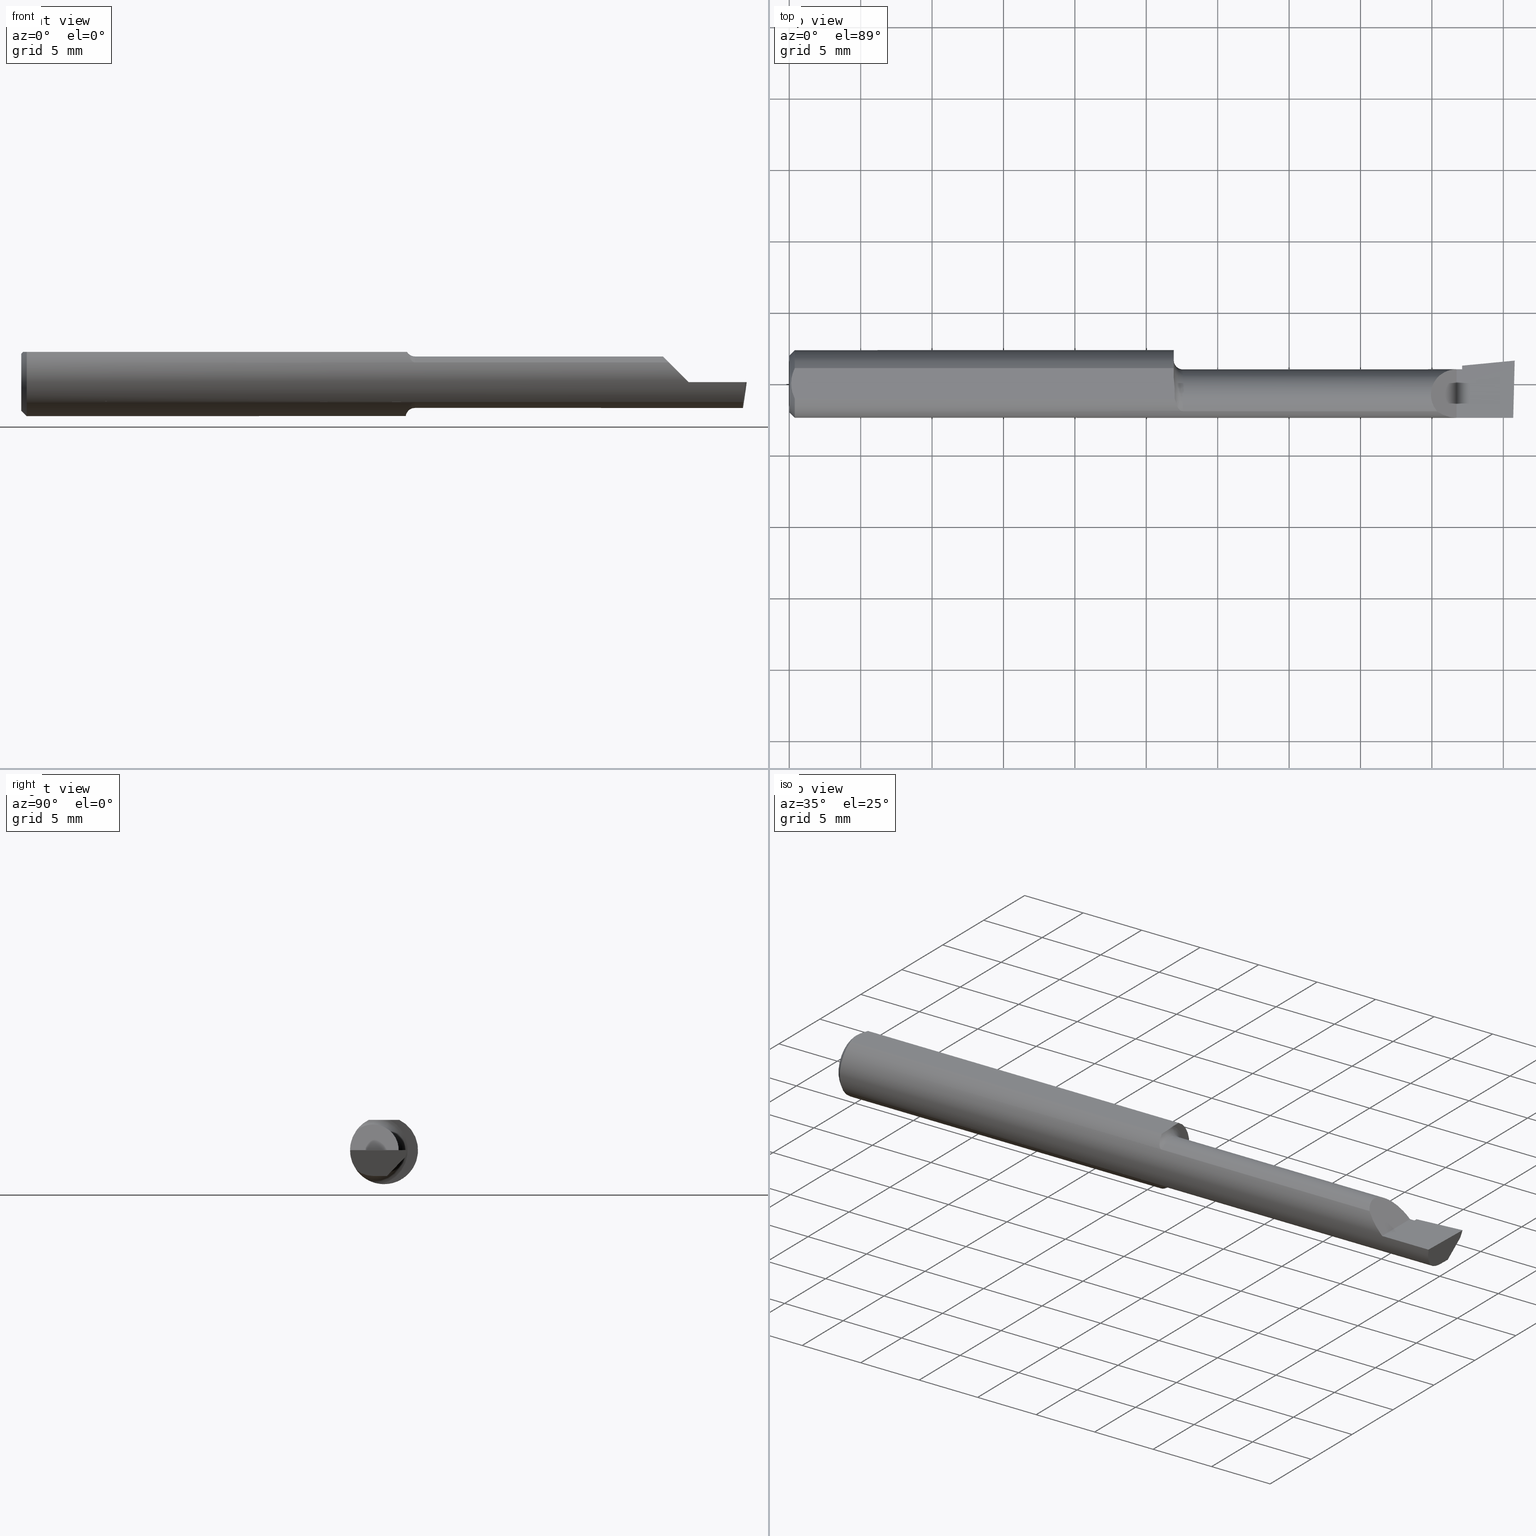
[diagram: canonical four-view strip — front | top / right | iso, engineering-drawing reading convention]
A machine part, canonical four-view strip (front | top / right | iso — engineering-drawing reading convention). The complete STEP part file that produces these views, byte-faithful:
ISO-10303-21;
HEADER;
FILE_DESCRIPTION (( 'STEP AP203' ),
    '1' );
FILE_NAME ('217345-B160900.STEP',
    '2024-04-23T17:39:53',
    ( '' ),
    ( '' ),
    'SwSTEP 2.0',
    'SolidWorks 2022',
    '' );
FILE_SCHEMA (( 'CONFIG_CONTROL_DESIGN' ));
ENDSEC;

DATA;
#1 = EDGE_CURVE ( 'NONE', #427, #292, #69, .T. ) ;
#2 = EDGE_LOOP ( 'NONE', ( #213, #172, #134, #616, #51, #469 ) ) ;
#3 = CALENDAR_DATE ( 2024, 23, 4 ) ;
#4 =( BOUNDED_CURVE ( )  B_SPLINE_CURVE ( 3, ( #475, #370, #35, #412 ),
 .UNSPECIFIED., .F., .T. ) 
 B_SPLINE_CURVE_WITH_KNOTS ( ( 4, 4 ),
 ( 4.712388980384689674, 5.334140324029830182 ),
 .UNSPECIFIED. ) 
 CURVE ( )  GEOMETRIC_REPRESENTATION_ITEM ( )  RATIONAL_B_SPLINE_CURVE ( ( 1.000000000000000000, 0.9680440490283178656, 0.9680440490283178656, 1.000000000000000000 ) ) 
 REPRESENTATION_ITEM ( '' )  );
#5 = ORIENTED_EDGE ( 'NONE', *, *, #332, .T. ) ;
#6 = CIRCLE ( 'NONE', #525, 0.07100000000000010469 ) ;
#7 = CARTESIAN_POINT ( 'NONE',  ( 1.840000000000000080, 0.04039999999999985963, 1.959434878635762025E-17 ) ) ;
#8 = CARTESIAN_POINT ( 'NONE',  ( 0.000000000000000000, 1.054420894065869177E-17, 0.07859999999999965625 ) ) ;
#9 = DIRECTION ( 'NONE',  ( -1.000000000000000000, -0.000000000000000000, -0.000000000000000000 ) ) ;
#10 = VECTOR ( 'NONE', #314, 39.37007874015748143 ) ;
#11 = CARTESIAN_POINT ( 'NONE',  ( 1.072372878085587899, -0.06813570069660571105, -0.06426486695182651032 ) ) ;
#12 = DIRECTION ( 'NONE',  ( 2.429359850419096032E-34, 4.268512490100411895E-17, 1.000000000000000000 ) ) ;
#13 = EDGE_CURVE ( 'NONE', #318, #75, #626, .T. ) ;
#14 = DIRECTION ( 'NONE',  ( -0.02617694830786939167, -0.9996573249755573709, 1.459184416195897376E-17 ) ) ;
#15 = DIRECTION ( 'NONE',  ( -1.000000000000000000, -4.268512490100411279E-18, -0.000000000000000000 ) ) ;
#16 = CC_DESIGN_DATE_AND_TIME_ASSIGNMENT ( #135, #470, ( #245 ) ) ;
#17 = AXIS2_PLACEMENT_3D ( 'NONE', #605, #21, #120 ) ;
#18 = LINE ( 'NONE', #542, #497 ) ;
#19 = VERTEX_POINT ( 'NONE', #97 ) ;
#20 = EDGE_CURVE ( 'NONE', #186, #231, #491, .T. ) ;
#21 = DIRECTION ( 'NONE',  ( -1.000000000000000000, -0.000000000000000000, -0.000000000000000000 ) ) ;
#22 = AXIS2_PLACEMENT_3D ( 'NONE', #359, #400, #302 ) ;
#23 = FACE_OUTER_BOUND ( 'NONE', #281, .T. ) ;
#24 = CARTESIAN_POINT ( 'NONE',  ( 1.072718485147075240, -0.06880529263944752671, 0.06356579742164533697 ) ) ;
#25 = CARTESIAN_POINT ( 'NONE',  ( 1.084999999999999964, -0.03060000000000022771, 0.000000000000000000 ) ) ;
#26 = VERTEX_POINT ( 'NONE', #338 ) ;
#27 = FACE_OUTER_BOUND ( 'NONE', #391, .T. ) ;
#28 = VECTOR ( 'NONE', #65, 39.37007874015748143 ) ;
#29 = DIRECTION ( 'NONE',  ( -1.000000000000000000, -4.268512490100411279E-18, -0.000000000000000000 ) ) ;
#30 = ORIENTED_EDGE ( 'NONE', *, *, #277, .F. ) ;
#31 = PERSON_AND_ORGANIZATION_ROLE ( 'classification_officer' ) ;
#32 = LINE ( 'NONE', #368, #374 ) ;
#33 = ORIENTED_EDGE ( 'NONE', *, *, #230, .T. ) ;
#34 = CARTESIAN_POINT ( 'NONE',  ( 0.000000000000000000, 0.000000000000000000, 0.000000000000000000 ) ) ;
#35 = CARTESIAN_POINT ( 'NONE',  ( 1.801509571749044802, -0.08756847698998002083, 0.03849042825095470161 ) ) ;
#36 = ORIENTED_EDGE ( 'NONE', *, *, #20, .T. ) ;
#37 = CARTESIAN_POINT ( 'NONE',  ( 1.995862624392068074, -0.09360000000000009979, -6.605666309584466665E-17 ) ) ;
#38 = ORIENTED_EDGE ( 'NONE', *, *, #100, .T. ) ;
#39 = DATE_AND_TIME ( #479, #530 ) ;
#40 = ADVANCED_FACE ( 'NONE', ( #196 ), #290, .F. ) ;
#41 = PLANE ( 'NONE',  #289 ) ;
#42 = EDGE_LOOP ( 'NONE', ( #5, #435, #538, #376, #33, #38 ) ) ;
#43 = ORGANIZATION ( 'UNSPECIFIED', 'UNSPECIFIED', '' ) ;
#44 = CARTESIAN_POINT ( 'NONE',  ( 2.000000000000004441, 0.06440000000001341873, 4.273634705088531894E-14 ) ) ;
#45 = CARTESIAN_POINT ( 'NONE',  ( -3.030643867965639230E-19, 0.04039999999999993596, 1.030335658007946046E-15 ) ) ;
#46 = CARTESIAN_POINT ( 'NONE',  ( 0.01499999999999999771, 0.000000000000000000, 0.000000000000000000 ) ) ;
#47 = DIRECTION ( 'NONE',  ( -1.000000000000000000, -0.000000000000000000, -0.000000000000000000 ) ) ;
#48 = CIRCLE ( 'NONE', #17, 0.07859999999999965625 ) ;
#49 = EDGE_CURVE ( 'NONE', #547, #587, #342, .T. ) ;
#50 = ORIENTED_EDGE ( 'NONE', *, *, #490, .T. ) ;
#51 = ORIENTED_EDGE ( 'NONE', *, *, #502, .F. ) ;
#52 = CARTESIAN_POINT ( 'NONE',  ( 1.854999999999999982, 0.05043808801135670622, 0.000000000000000000 ) ) ;
#53 = CARTESIAN_POINT ( 'NONE',  ( 1.991772787678609324, -0.2497845628634190740, -6.377686106282058433E-17 ) ) ;
#54 = VECTOR ( 'NONE', #136, 39.37007874015748143 ) ;
#55 = CYLINDRICAL_SURFACE ( 'NONE', #517, 0.09360000000000001652 ) ;
#56 = DIRECTION ( 'NONE',  ( 0.09165774897393337561, -0.9519021185660612172, 0.2923717047227308297 ) ) ;
#57 = FACE_OUTER_BOUND ( 'NONE', #540, .T. ) ;
#58 = VECTOR ( 'NONE', #458, 39.37007874015748143 ) ;
#59 = CARTESIAN_POINT ( 'NONE',  ( 1.434010493224923133, 0.009901409102841211146, -6.829619984160658046E-17 ) ) ;
#60 = ORIENTED_EDGE ( 'NONE', *, *, #248, .T. ) ;
#61 = CARTESIAN_POINT ( 'NONE',  ( 1.084999999999999964, -0.07608366013071805878, -0.05451822320209422784 ) ) ;
#62 = CARTESIAN_POINT ( 'NONE',  ( 1.063362255574652693, -0.03233437538769846215, 0.08360000000000003539 ) ) ;
#63 = PLANE ( 'NONE',  #22 ) ;
#64 = EDGE_CURVE ( 'NONE', #19, #292, #18, .T. ) ;
#65 = DIRECTION ( 'NONE',  ( -1.000000000000000000, 5.691349986800549142E-18, -0.000000000000000000 ) ) ;
#66 = DIRECTION ( 'NONE',  ( 0.000000000000000000, 0.000000000000000000, -1.000000000000000000 ) ) ;
#67 = CARTESIAN_POINT ( 'NONE',  ( 0.01499999999999999771, 0.000000000000000000, -0.09360000000000001652 ) ) ;
#68 = CARTESIAN_POINT ( 'NONE',  ( 0.000000000000000000, 0.000000000000000000, 0.000000000000000000 ) ) ;
#69 = CIRCLE ( 'NONE', #113, 0.09360000000000001652 ) ;
#70 = CARTESIAN_POINT ( 'NONE',  ( 1.059999999999995612, -0.01523829271462615043, -0.09264723852076071908 ) ) ;
#71 = ORIENTED_EDGE ( 'NONE', *, *, #350, .T. ) ;
#72 = ADVANCED_BREP_SHAPE_REPRESENTATION ( '217345-B160900', ( #181, #389 ), #225 ) ;
#73 = DIRECTION ( 'NONE',  ( 0.000000000000000000, 1.000000000000000000, -4.268512490100411895E-17 ) ) ;
#74 = DIRECTION ( 'NONE',  ( 0.06894566448119621160, -0.7160281025913035613, 0.6946583704589933683 ) ) ;
#75 = VERTEX_POINT ( 'NONE', #352 ) ;
#76 = ADVANCED_FACE ( 'NONE', ( #442 ), #434, .T. ) ;
#77 = CARTESIAN_POINT ( 'NONE',  ( 1.989625015145392917, -0.07608366013071823919, -0.05451822320209416539 ) ) ;
#78 = ORIENTED_EDGE ( 'NONE', *, *, #355, .F. ) ;
#79 = PERSON_AND_ORGANIZATION ( #190, #43 ) ;
#80 = CC_DESIGN_PERSON_AND_ORGANIZATION_ASSIGNMENT ( #91, #88, ( #447 ) ) ;
#81 = PLANE ( 'NONE',  #112 ) ;
#82 = EDGE_CURVE ( 'NONE', #75, #623, #153, .T. ) ;
#83 = ORIENTED_EDGE ( 'NONE', *, *, #64, .F. ) ;
#84 = COORDINATED_UNIVERSAL_TIME_OFFSET ( 8, 0, .BEHIND. ) ;
#85 = VECTOR ( 'NONE', #551, 39.37007874015748143 ) ;
#86 = EDGE_CURVE ( 'NONE', #436, #151, #486, .T. ) ;
#87 = ORIENTED_EDGE ( 'NONE', *, *, #513, .F. ) ;
#88 = PERSON_AND_ORGANIZATION_ROLE ( 'creator' ) ;
#89 = CARTESIAN_POINT ( 'NONE',  ( 1.854999999999999982, 0.003039038829300866676, -0.06252531540616805550 ) ) ;
#90 = ORIENTED_EDGE ( 'NONE', *, *, #328, .F. ) ;
#91 = PERSON_AND_ORGANIZATION ( #190, #43 ) ;
#92 = ORIENTED_EDGE ( 'NONE', *, *, #158, .T. ) ;
#93 = ADVANCED_FACE ( 'NONE', ( #23 ), #219, .F. ) ;
#94 = CARTESIAN_POINT ( 'NONE',  ( 2.000000000000000000, -0.2500000000000000555, -6.829619984160658046E-17 ) ) ;
#95 = AXIS2_PLACEMENT_3D ( 'NONE', #59, #56, #506 ) ;
#96 = DATE_AND_TIME ( #3, #457 ) ;
#97 = CARTESIAN_POINT ( 'NONE',  ( 0.000000000000000000, 0.000000000000000000, -0.07859999999999965625 ) ) ;
#98 = DIRECTION ( 'NONE',  ( 1.000000000000000000, 0.000000000000000000, 0.000000000000000000 ) ) ;
#99 = DIRECTION ( 'NONE',  ( -1.000000000000000000, -4.268512490100411279E-18, -0.000000000000000000 ) ) ;
#100 = EDGE_CURVE ( 'NONE', #614, #186, #102, .T. ) ;
#101 = CARTESIAN_POINT ( 'NONE',  ( 1.785481776797905207, -0.07608366013071837797, 0.05451822320209400580 ) ) ;
#102 = LINE ( 'NONE', #53, #595 ) ;
#103 = B_SPLINE_CURVE_WITH_KNOTS ( 'NONE', 3,
 ( #541, #251, #484, #499, #198, #625 ),
 .UNSPECIFIED., .F., .F.,
 ( 4, 2, 4 ),
 ( 0.006881281100865561072, 0.007427683811376461706, 0.007974086521887361473 ),
 .UNSPECIFIED. ) ;
#104 = CIRCLE ( 'NONE', #578, 0.09600000000000015465 ) ;
#105 = CARTESIAN_POINT ( 'NONE',  ( 1.770398118553868860, 0.04039999999999994984, 0.06960188144613040084 ) ) ;
#106 = DIRECTION ( 'NONE',  ( 1.000000000000000000, 4.268512490100411279E-18, 0.000000000000000000 ) ) ;
#107 = LINE ( 'NONE', #411, #620 ) ;
#108 = DIRECTION ( 'NONE',  ( -1.000000000000000000, -4.268512490100411279E-18, -0.000000000000000000 ) ) ;
#109 = EDGE_CURVE ( 'NONE', #180, #325, #404, .T. ) ;
#110 = DIRECTION ( 'NONE',  ( 0.000000000000000000, 0.000000000000000000, 1.000000000000000000 ) ) ;
#111 = CARTESIAN_POINT ( 'NONE',  ( 1.989625015145392917, -0.07608366013071823919, -0.05451822320209416539 ) ) ;
#112 = AXIS2_PLACEMENT_3D ( 'NONE', #216, #74, #183 ) ;
#113 = AXIS2_PLACEMENT_3D ( 'NONE', #46, #47, #240 ) ;
#114 = CARTESIAN_POINT ( 'NONE',  ( 1.988351831874612508, -0.04739579569646898416, -0.07100000000000017408 ) ) ;
#115 = ORIENTED_EDGE ( 'NONE', *, *, #552, .F. ) ;
#116 = CARTESIAN_POINT ( 'NONE',  ( 1.064336437763706122, -0.04985092026457548647, 0.07969472503477169345 ) ) ;
#117 = LOCAL_TIME ( 10, 39, 53.00000000000000000, #326 ) ;
#118 = DIRECTION ( 'NONE',  ( 1.000000000000000000, 4.268512490100411279E-18, 0.000000000000000000 ) ) ;
#119 = ORIENTED_EDGE ( 'NONE', *, *, #212, .F. ) ;
#120 = DIRECTION ( 'NONE',  ( 0.000000000000000000, 0.000000000000000000, 1.000000000000000000 ) ) ;
#121 = DIRECTION ( 'NONE',  ( -1.000000000000000000, -4.268512490100411279E-18, -0.000000000000000000 ) ) ;
#122 = ORIENTED_EDGE ( 'NONE', *, *, #146, .T. ) ;
#123 = EDGE_CURVE ( 'NONE', #292, #431, #166, .T. ) ;
#124 = CALENDAR_DATE ( 2024, 23, 4 ) ;
#125 = AXIS2_PLACEMENT_3D ( 'NONE', #94, #392, #585 ) ;
#126 = DIRECTION ( 'NONE',  ( -0.000000000000000000, 1.000000000000000000, -0.000000000000000000 ) ) ;
#127 = ORIENTED_EDGE ( 'NONE', *, *, #220, .T. ) ;
#128 = EDGE_CURVE ( 'NONE', #436, #557, #104, .T. ) ;
#129 = FACE_OUTER_BOUND ( 'NONE', #420, .T. ) ;
#130 = SECURITY_CLASSIFICATION ( '', '', #522 ) ;
#131 = ORIENTED_EDGE ( 'NONE', *, *, #602, .F. ) ;
#132 = LENGTH_MEASURE_WITH_UNIT ( LENGTH_MEASURE( 0.02539999999999999897 ), #474 );
#133 = CARTESIAN_POINT ( 'NONE',  ( 1.854999999999999982, -0.2500000000000000555, 1.135460985248596835E-17 ) ) ;
#134 = ORIENTED_EDGE ( 'NONE', *, *, #158, .F. ) ;
#135 = DATE_AND_TIME ( #617, #539 ) ;
#136 = DIRECTION ( 'NONE',  ( 0.1053106618241779063, 0.6976485211320171409, 0.7086580314005218595 ) ) ;
#137 = VECTOR ( 'NONE', #194, 39.37007874015748143 ) ;
#138 = ORIENTED_EDGE ( 'NONE', *, *, #13, .T. ) ;
#139 = LINE ( 'NONE', #297, #330 ) ;
#140 = ORIENTED_EDGE ( 'NONE', *, *, #586, .F. ) ;
#141 = APPROVAL_PERSON_ORGANIZATION ( #569, #262, #624 ) ;
#142 = ORIENTED_EDGE ( 'NONE', *, *, #502, .T. ) ;
#143 = DATE_TIME_ROLE ( 'classification_date' ) ;
#144 = DESIGN_CONTEXT ( 'detailed design', #243, 'design' ) ;
#145 = ORIENTED_EDGE ( 'NONE', *, *, #291, .T. ) ;
#146 = EDGE_CURVE ( 'NONE', #460, #438, #163, .T. ) ;
#147 = VERTEX_POINT ( 'NONE', #360 ) ;
#148 = CC_DESIGN_APPROVAL ( #534, ( #447 ) ) ;
#149 = DIRECTION ( 'NONE',  ( -1.000000000000000000, -0.000000000000000000, -0.000000000000000000 ) ) ;
#150 = CARTESIAN_POINT ( 'NONE',  ( 1.077249994923977994, -0.07326991650738470807, -0.05826485454810942377 ) ) ;
#151 = VERTEX_POINT ( 'NONE', #295 ) ;
#152 = DIRECTION ( 'NONE',  ( 4.268512490100411279E-18, -1.000000000000000000, 0.000000000000000000 ) ) ;
#153 = LINE ( 'NONE', #546, #606 ) ;
#154 = ORIENTED_EDGE ( 'NONE', *, *, #372, .T. ) ;
#155 = VECTOR ( 'NONE', #383, 39.37007874015748143 ) ;
#156 = CARTESIAN_POINT ( 'NONE',  ( 1.084999999999999964, -0.07608366013071805878, 0.05451822320209422784 ) ) ;
#157 = CARTESIAN_POINT ( 'NONE',  ( 0.01499999999999999771, 1.146269404001922775E-17, 0.09360000000000001652 ) ) ;
#158 = EDGE_CURVE ( 'NONE', #427, #413, #498, .T. ) ;
#159 = DIRECTION ( 'NONE',  ( 4.268512490100411279E-18, -1.000000000000000000, 0.000000000000000000 ) ) ;
#160 = CARTESIAN_POINT ( 'NONE',  ( 1.854999999999999982, 0.02466814268713793043, -0.04023083677511909290 ) ) ;
#161 = ORIENTED_EDGE ( 'NONE', *, *, #597, .T. ) ;
#162 = CARTESIAN_POINT ( 'NONE',  ( 1.013387277386880392, -0.03060000000000022771, 4.736658843696217583E-16 ) ) ;
#163 = LINE ( 'NONE', #160, #85 ) ;
#164 = ORIENTED_EDGE ( 'NONE', *, *, #128, .F. ) ;
#165 = FACE_OUTER_BOUND ( 'NONE', #2, .T. ) ;
#166 = CIRCLE ( 'NONE', #554, 0.09360000000000001652 ) ;
#167 = CARTESIAN_POINT ( 'NONE',  ( 1.989254605881537685, 0.03820997996013973663, -0.08190066459133928112 ) ) ;
#168 = ORIENTED_EDGE ( 'NONE', *, *, #215, .T. ) ;
#169 = CARTESIAN_POINT ( 'NONE',  ( 0.009539353699420834165, -0.02875682547511369813, 0.08360000000000003539 ) ) ;
#170 = AXIS2_PLACEMENT_3D ( 'NONE', #550, #306, #319 ) ;
#171 = CARTESIAN_POINT ( 'NONE',  ( 1.060000000000000053, -0.007864705882352667973, -0.09326900021649256467 ) ) ;
#172 = ORIENTED_EDGE ( 'NONE', *, *, #248, .F. ) ;
#173 = APPLICATION_PROTOCOL_DEFINITION ( 'international standard', 'config_control_design', 1994, #206 ) ;
#174 = PRODUCT_RELATED_PRODUCT_CATEGORY ( 'detail', '', ( #365 ) ) ;
#175 = CARTESIAN_POINT ( 'NONE',  ( 1.854999999999999982, 0.05043808801135910014, 1.028711510114199084E-15 ) ) ;
#176 = ORIENTED_EDGE ( 'NONE', *, *, #556, .T. ) ;
#177 = MECHANICAL_CONTEXT ( 'NONE', #206, 'mechanical' ) ;
#178 = VECTOR ( 'NONE', #364, 39.37007874015748854 ) ;
#179 = CARTESIAN_POINT ( 'NONE',  ( 1.061750924354899261, -0.03635445752162102390, -0.08656092162675020629 ) ) ;
#180 = VERTEX_POINT ( 'NONE', #8 ) ;
#181 = MANIFOLD_SOLID_BREP ( 'Extrude7', #545 ) ;
#182 = DIRECTION ( 'NONE',  ( 0.000000000000000000, 0.000000000000000000, 1.000000000000000000 ) ) ;
#183 = DIRECTION ( 'NONE',  ( 0.000000000000000000, -0.6963153109074924352, -0.7177360153954949196 ) ) ;
#184 = EDGE_LOOP ( 'NONE', ( #50, #464 ) ) ;
#185 = CARTESIAN_POINT ( 'NONE',  ( 1.060000000000000053, 0.04209513035969836975, 0.08360000000000000764 ) ) ;
#186 = VERTEX_POINT ( 'NONE', #308 ) ;
#187 = DIRECTION ( 'NONE',  ( 0.000000000000000000, 0.000000000000000000, -1.000000000000000000 ) ) ;
#188 = VECTOR ( 'NONE', #271, 39.37007874015748143 ) ;
#189 = CARTESIAN_POINT ( 'NONE',  ( 1.854999999999999982, 0.04694360585384953211, -0.01137731495658560188 ) ) ;
#190 = PERSON ( 'UNSPECIFIED', 'UNSPECIFIED', 'UNSPECIFIED', ('UNSPECIFIED'), ('UNSPECIFIED'), ('UNSPECIFIED') ) ;
#191 = APPROVAL_ROLE ( '' ) ;
#192 = VERTEX_POINT ( 'NONE', #596 ) ;
#193 = CC_DESIGN_SECURITY_CLASSIFICATION ( #130, ( #447 ) ) ;
#194 = DIRECTION ( 'NONE',  ( -1.000000000000000000, -0.000000000000000000, -0.000000000000000000 ) ) ;
#195 = ADVANCED_FACE ( 'NONE', ( #453 ), #500, .F. ) ;
#196 = FACE_OUTER_BOUND ( 'NONE', #366, .T. ) ;
#197 = EDGE_CURVE ( 'NONE', #600, #361, #495, .T. ) ;
#198 = CARTESIAN_POINT ( 'NONE',  ( 0.01203648650249650870, 0.03550565407121124978, 0.08360000000000000764 ) ) ;
#199 = DIRECTION ( 'NONE',  ( 4.268512490100411279E-18, -1.000000000000000000, 0.000000000000000000 ) ) ;
#200 = EDGE_LOOP ( 'NONE', ( #424, #316, #288, #333, #276, #528, #154, #512, #477, #407 ) ) ;
#201 = LOCAL_TIME ( 10, 39, 53.00000000000000000, #334 ) ;
#202 = FACE_OUTER_BOUND ( 'NONE', #357, .T. ) ;
#203 = CARTESIAN_POINT ( 'NONE',  ( 1.060000000000000053, -0.03060000000000022771, 0.000000000000000000 ) ) ;
#204 = CARTESIAN_POINT ( 'NONE',  ( 0.005000000000000237761, 1.025183009042025117E-17, 0.08360000000000000764 ) ) ;
#205 = DIRECTION ( 'NONE',  ( -1.000000000000000000, -0.000000000000000000, -0.000000000000000000 ) ) ;
#206 = APPLICATION_CONTEXT ( 'configuration controlled 3d designs of mechanical parts and assemblies' ) ;
#207 = AXIS2_PLACEMENT_3D ( 'NONE', #531, #591, #152 ) ;
#208 = DIRECTION ( 'NONE',  ( -1.000000000000000000, -0.000000000000000000, -0.000000000000000000 ) ) ;
#209 = DIRECTION ( 'NONE',  ( 0.7071067811865391350, 0.000000000000000000, -0.7071067811865558994 ) ) ;
#210 = CARTESIAN_POINT ( 'NONE',  ( 0.005000000000000228220, -0.007328888879231051229, 0.08359999999999999376 ) ) ;
#211 = CARTESIAN_POINT ( 'NONE',  ( 1.081360941731894343, -0.07557034852506695766, -0.05524018594043172276 ) ) ;
#212 = EDGE_CURVE ( 'NONE', #574, #557, #222, .T. ) ;
#213 = ORIENTED_EDGE ( 'NONE', *, *, #86, .F. ) ;
#214 = DIRECTION ( 'NONE',  ( 0.000000000000000000, -1.000000000000000000, 0.000000000000000000 ) ) ;
#215 = EDGE_CURVE ( 'NONE', #623, #460, #570, .T. ) ;
#216 = CARTESIAN_POINT ( 'NONE',  ( 1.434596552969581662, 0.003814945941878222693, -0.02000000000000000042 ) ) ;
#217 = EDGE_LOOP ( 'NONE', ( #227, #341, #237, #279, #142 ) ) ;
#218 = CARTESIAN_POINT ( 'NONE',  ( 1.070942860874689151, -0.06599234460544597947, 0.06650584501266756932 ) ) ;
#219 = TOROIDAL_SURFACE ( 'NONE', #362, 0.09600000000000015465, 0.02499999999999994241 ) ;
#220 = EDGE_CURVE ( 'NONE', #231, #322, #32, .T. ) ;
#221 = DIRECTION ( 'NONE',  ( 4.268512490100411279E-18, -1.000000000000000000, 0.000000000000000000 ) ) ;
#222 = B_SPLINE_CURVE_WITH_KNOTS ( 'NONE', 3,
 ( #395, #456, #211, #590, #150, #446, #11, #345, #226, #607, #179, #511, #70, #171 ),
 .UNSPECIFIED., .F., .F.,
 ( 4, 2, 2, 2, 2, 2, 4 ),
 ( 1.959461805766899059E-07, 0.0001418114856513925427, 0.0002834270251222083996, 0.0005666581040638398424, 0.001133120261947107282, 0.001699582419830374504, 0.002266044577713642160 ),
 .UNSPECIFIED. ) ;
#223 = ORIENTED_EDGE ( 'NONE', *, *, #49, .F. ) ;
#224 = DATE_AND_TIME ( #124, #117 ) ;
#225 =( GEOMETRIC_REPRESENTATION_CONTEXT ( 3 ) GLOBAL_UNCERTAINTY_ASSIGNED_CONTEXT ( ( #244 ) ) GLOBAL_UNIT_ASSIGNED_CONTEXT ( ( #238, #285, #621 ) ) REPRESENTATION_CONTEXT ( 'NONE', 'WORKASPACE' ) );
#226 = CARTESIAN_POINT ( 'NONE',  ( 1.066007506249287529, -0.05524264031795315943, -0.07589747771031250811 ) ) ;
#227 = ORIENTED_EDGE ( 'NONE', *, *, #109, .F. ) ;
#228 = APPLICATION_PROTOCOL_DEFINITION ( 'international standard', 'config_control_design', 1994, #243 ) ;
#229 = CARTESIAN_POINT ( 'NONE',  ( 1.854999999999999982, -0.03060000000000022424, 0.000000000000000000 ) ) ;
#230 = EDGE_CURVE ( 'NONE', #147, #614, #233, .T. ) ;
#231 = VERTEX_POINT ( 'NONE', #268 ) ;
#232 = DIRECTION ( 'NONE',  ( 1.000000000000000000, 0.000000000000000000, 0.000000000000000000 ) ) ;
#233 = LINE ( 'NONE', #167, #178 ) ;
#234 = ORIENTED_EDGE ( 'NONE', *, *, #1, .F. ) ;
#235 = DIRECTION ( 'NONE',  ( 0.9922060308645480609, -0.02598182930468958748, -0.1218693434051461438 ) ) ;
#236 = CC_DESIGN_APPROVAL ( #262, ( #245 ) ) ;
#237 = ORIENTED_EDGE ( 'NONE', *, *, #64, .T. ) ;
#238 =( CONVERSION_BASED_UNIT ( 'INCH', #132 ) LENGTH_UNIT ( ) NAMED_UNIT ( #462 ) );
#239 = FACE_OUTER_BOUND ( 'NONE', #184, .T. ) ;
#240 = DIRECTION ( 'NONE',  ( 0.000000000000000000, 0.000000000000000000, 1.000000000000000000 ) ) ;
#241 = AXIS2_PLACEMENT_3D ( 'NONE', #432, #98, #187 ) ;
#242 = EDGE_LOOP ( 'NONE', ( #78, #581, #488, #410, #516, #161 ) ) ;
#243 = APPLICATION_CONTEXT ( 'configuration controlled 3d designs of mechanical parts and assemblies' ) ;
#244 = UNCERTAINTY_MEASURE_WITH_UNIT (LENGTH_MEASURE( 1.000000000000000082E-05 ), #238, 'distance_accuracy_value', 'NONE');
#245 = PRODUCT_DEFINITION ( 'UNKNOWN', '', #447, #144 ) ;
#246 = APPROVAL ( #339, 'UNSPECIFIED' ) ;
#247 = ORIENTED_EDGE ( 'NONE', *, *, #613, .T. ) ;
#248 = EDGE_CURVE ( 'NONE', #413, #436, #562, .T. ) ;
#249 = ORIENTED_EDGE ( 'NONE', *, *, #328, .T. ) ;
#250 = EDGE_CURVE ( 'NONE', #460, #361, #536, .T. ) ;
#251 = CARTESIAN_POINT ( 'NONE',  ( 0.005000000000000227353, 0.007308422719211826561, 0.08360000000000000764 ) ) ;
#252 = CARTESIAN_POINT ( 'NONE',  ( 0.000000000000000000, 0.04209513035969837669, 0.08360000000000000764 ) ) ;
#253 = VECTOR ( 'NONE', #9, 39.37007874015748143 ) ;
#254 = FACE_OUTER_BOUND ( 'NONE', #577, .T. ) ;
#255 = DIRECTION ( 'NONE',  ( 0.000000000000000000, -1.000000000000000000, 0.000000000000000000 ) ) ;
#256 = LINE ( 'NONE', #331, #414 ) ;
#257 = CARTESIAN_POINT ( 'NONE',  ( 1.084999999999999964, -0.03060000000000024159, 0.000000000000000000 ) ) ;
#258 = CARTESIAN_POINT ( 'NONE',  ( 1.434596552969581662, 0.003814945941878222693, -0.02000000000000000042 ) ) ;
#259 = EDGE_CURVE ( 'NONE', #600, #524, #592, .T. ) ;
#260 = DIRECTION ( 'NONE',  ( 0.7071067811865391350, 8.659560562355035164E-17, 0.7071067811865558994 ) ) ;
#261 = LINE ( 'NONE', #162, #267 ) ;
#262 = APPROVAL ( #428, 'UNSPECIFIED' ) ;
#263 = CARTESIAN_POINT ( 'NONE',  ( 1.062861144841093175, -0.04209513036041400563, 0.08360000000000000764 ) ) ;
#264 = ORIENTED_EDGE ( 'NONE', *, *, #556, .F. ) ;
#265 = ADVANCED_FACE ( 'NONE', ( #508 ), #81, .F. ) ;
#266 = CARTESIAN_POINT ( 'NONE',  ( 1.988799325593724632, -0.03030670001847553252, -0.07100000000000021572 ) ) ;
#267 = VECTOR ( 'NONE', #461, 39.37007874015748143 ) ;
#268 = CARTESIAN_POINT ( 'NONE',  ( 1.840000000000000080, -0.09360000000000005815, 1.959434878635762025E-17 ) ) ;
#269 = ORIENTED_EDGE ( 'NONE', *, *, #552, .T. ) ;
#270 = CARTESIAN_POINT ( 'NONE',  ( 1.076209588651319438, -0.07242362088648859886, 0.05932313091832384228 ) ) ;
#271 = DIRECTION ( 'NONE',  ( 4.268512490100411279E-18, -1.000000000000000000, 1.189000693621284344E-16 ) ) ;
#272 = ORIENTED_EDGE ( 'NONE', *, *, #20, .F. ) ;
#273 = CARTESIAN_POINT ( 'NONE',  ( 1.785481776797905207, -0.07608366013071837797, 0.05451822320209400580 ) ) ;
#274 = VECTOR ( 'NONE', #388, 39.37007874015748854 ) ;
#275 = CARTESIAN_POINT ( 'NONE',  ( 1.988791645263412011, -0.03060000000000022424, -0.07100000000000021572 ) ) ;
#276 = ORIENTED_EDGE ( 'NONE', *, *, #49, .T. ) ;
#277 = EDGE_CURVE ( 'NONE', #557, #413, #627, .T. ) ;
#278 = LINE ( 'NONE', #610, #253 ) ;
#279 = ORIENTED_EDGE ( 'NONE', *, *, #123, .T. ) ;
#280 = PLANE ( 'NONE',  #349 ) ;
#281 = EDGE_LOOP ( 'NONE', ( #450, #164, #612, #417, #145 ) ) ;
#282 = AXIS2_PLACEMENT_3D ( 'NONE', #615, #118, #375 ) ;
#283 = PLANE ( 'NONE',  #567 ) ;
#284 = CARTESIAN_POINT ( 'NONE',  ( 1.469999999999999973, -0.07608366013071823919, 0.05451822320209416539 ) ) ;
#285 =( NAMED_UNIT ( * ) PLANE_ANGLE_UNIT ( ) SI_UNIT ( $, .RADIAN. ) );
#286 = CARTESIAN_POINT ( 'NONE',  ( 2.075578470192265268, -0.1475581462076027695, 0.6605145482336969298 ) ) ;
#287 = ORIENTED_EDGE ( 'NONE', *, *, #197, .T. ) ;
#288 = ORIENTED_EDGE ( 'NONE', *, *, #358, .T. ) ;
#289 = AXIS2_PLACEMENT_3D ( 'NONE', #286, #235, #622 ) ;
#290 = PLANE ( 'NONE',  #125 ) ;
#291 = EDGE_CURVE ( 'NONE', #547, #574, #6, .T. ) ;
#292 = VERTEX_POINT ( 'NONE', #67 ) ;
#293 = APPROVAL_PERSON_ORGANIZATION ( #296, #246, #191 ) ;
#294 = DIRECTION ( 'NONE',  ( 0.000000000000000000, -1.000000000000000000, 4.268512490100411895E-17 ) ) ;
#295 = CARTESIAN_POINT ( 'NONE',  ( 1.062861144841093175, -0.04209513036041400563, 0.08360000000000000764 ) ) ;
#296 = PERSON_AND_ORGANIZATION ( #190, #43 ) ;
#297 = CARTESIAN_POINT ( 'NONE',  ( 1.469999999999999973, -0.07608366013071823919, -0.05451822320209416539 ) ) ;
#298 = CARTESIAN_POINT ( 'NONE',  ( 1.062798152027436993, -0.01771129213186554280, 0.08360000000000003539 ) ) ;
#299 = AXIS2_PLACEMENT_3D ( 'NONE', #565, #29, #221 ) ;
#300 = DIRECTION ( 'NONE',  ( 4.268512490100411279E-18, -1.000000000000000000, 0.000000000000000000 ) ) ;
#301 = CARTESIAN_POINT ( 'NONE',  ( 1.060000000000000053, 0.01659152466280365210, 0.08360000000000000764 ) ) ;
#302 = DIRECTION ( 'NONE',  ( -0.7071067811865516806, 0.000000000000000000, 0.7071067811865433539 ) ) ;
#303 = CARTESIAN_POINT ( 'NONE',  ( 1.060000000000000053, 0.006742283091807260535, 0.08360000000000003539 ) ) ;
#304 = CC_DESIGN_PERSON_AND_ORGANIZATION_ASSIGNMENT ( #79, #425, ( #245 ) ) ;
#305 = CC_DESIGN_DATE_AND_TIME_ASSIGNMENT ( #39, #143, ( #130 ) ) ;
#306 = DIRECTION ( 'NONE',  ( 1.000000000000000000, 4.268512490100411279E-18, 0.000000000000000000 ) ) ;
#307 = PRODUCT_DEFINITION_SHAPE ( 'NONE', 'NONE',  #245 ) ;
#308 = CARTESIAN_POINT ( 'NONE',  ( 1.995862624392068074, -0.09360000000000009979, -6.605666309584466665E-17 ) ) ;
#309 = ADVANCED_FACE ( 'NONE', ( #129 ), #280, .T. ) ;
#310 = B_SPLINE_CURVE_WITH_KNOTS ( 'NONE', 3,
 ( #514, #116, #354, #218, #24, #270, #367, #317, #455, #156 ),
 .UNSPECIFIED., .F., .F.,
 ( 4, 2, 2, 2, 4 ),
 ( 4.459497343016854294E-07, 0.0006638717458672127331, 0.0009955846439336664671, 0.001161441092966892900, 0.001327297542000119551 ),
 .UNSPECIFIED. ) ;
#311 = CARTESIAN_POINT ( 'NONE',  ( 0.01499999999999999771, 0.000000000000000000, 0.000000000000000000 ) ) ;
#312 =( BOUNDED_CURVE ( )  B_SPLINE_CURVE ( 3, ( #37, #426, #555, #77 ),
 .UNSPECIFIED., .F., .F. ) 
 B_SPLINE_CURVE_WITH_KNOTS ( ( 4, 4 ),
 ( 4.922438424664829171, 5.544189768309970567 ),
 .UNSPECIFIED. ) 
 CURVE ( )  GEOMETRIC_REPRESENTATION_ITEM ( )  RATIONAL_B_SPLINE_CURVE ( ( 1.000000000000000000, 0.9680440490283178656, 0.9680440490283178656, 1.000000000000000000 ) ) 
 REPRESENTATION_ITEM ( '' )  );
#313 = FACE_OUTER_BOUND ( 'NONE', #200, .T. ) ;
#314 = DIRECTION ( 'NONE',  ( 0.9953961983671800740, 0.09584575252021028391, -0.000000000000000000 ) ) ;
#315 = CYLINDRICAL_SURFACE ( 'NONE', #299, 0.07100000000000017408 ) ;
#316 = ORIENTED_EDGE ( 'NONE', *, *, #259, .T. ) ;
#317 = CARTESIAN_POINT ( 'NONE',  ( 1.080753778368559015, -0.07537148234687034154, 0.05551905660761854294 ) ) ;
#318 = VERTEX_POINT ( 'NONE', #175 ) ;
#319 = DIRECTION ( 'NONE',  ( 0.000000000000000000, -1.000000000000000000, 0.000000000000000000 ) ) ;
#320 = VECTOR ( 'NONE', #401, 39.37007874015748143 ) ;
#321 = CARTESIAN_POINT ( 'NONE',  ( 0.005000000000000237761, 1.025183009042025117E-17, 0.08360000000000000764 ) ) ;
#322 = VERTEX_POINT ( 'NONE', #618 ) ;
#323 = CARTESIAN_POINT ( 'NONE',  ( 1.854999999999999982, 0.03291555154404718353, -0.03172971339384394324 ) ) ;
#324 = DIRECTION ( 'NONE',  ( -1.000000000000000000, -4.268512490100411279E-18, -0.000000000000000000 ) ) ;
#325 = VERTEX_POINT ( 'NONE', #321 ) ;
#326 = COORDINATED_UNIVERSAL_TIME_OFFSET ( 8, 0, .BEHIND. ) ;
#327 = CARTESIAN_POINT ( 'NONE',  ( 1.854999999999999982, -0.03060000000000022424, -0.07100000000000021572 ) ) ;
#328 = EDGE_CURVE ( 'NONE', #231, #587, #4, .T. ) ;
#329 = ORIENTED_EDGE ( 'NONE', *, *, #584, .F. ) ;
#330 = VECTOR ( 'NONE', #588, 39.37007874015748143 ) ;
#331 = CARTESIAN_POINT ( 'NONE',  ( 1.996243047997680486, 0.008417438355111557524, -0.07100000000000021572 ) ) ;
#332 = EDGE_CURVE ( 'NONE', #186, #524, #312, .T. ) ;
#333 = ORIENTED_EDGE ( 'NONE', *, *, #291, .F. ) ;
#334 = COORDINATED_UNIVERSAL_TIME_OFFSET ( 8, 0, .BEHIND. ) ;
#335 = DIRECTION ( 'NONE',  ( 1.000000000000000000, 4.268512490100411279E-18, 0.000000000000000000 ) ) ;
#336 = CIRCLE ( 'NONE', #170, 0.07100000000000017408 ) ;
#337 = ORIENTED_EDGE ( 'NONE', *, *, #444, .T. ) ;
#338 = CARTESIAN_POINT ( 'NONE',  ( 1.989797099917948842, 0.007796764149783521822, -0.07100000000000021572 ) ) ;
#339 = APPROVAL_STATUS ( 'not_yet_approved' ) ;
#340 = ADVANCED_FACE ( 'NONE', ( #313 ), #315, .T. ) ;
#341 = ORIENTED_EDGE ( 'NONE', *, *, #490, .F. ) ;
#342 = LINE ( 'NONE', #284, #489 ) ;
#343 = CIRCLE ( 'NONE', #509, 0.07859999999999965625 ) ;
#344 = CARTESIAN_POINT ( 'NONE',  ( 1.740893772288689023, -0.02263899945514353737, 0.09910622771130987718 ) ) ;
#345 = CARTESIAN_POINT ( 'NONE',  ( 1.068052623108272536, -0.06089616178095311888, -0.07140423527607858700 ) ) ;
#346 =( BOUNDED_CURVE ( )  B_SPLINE_CURVE ( 3, ( #101, #344, #105, #7 ),
 .UNSPECIFIED., .F., .T. ) 
 B_SPLINE_CURVE_WITH_KNOTS ( ( 4, 4 ),
 ( 5.587886473277670518, 7.853981633974482790 ),
 .UNSPECIFIED. ) 
 CURVE ( )  GEOMETRIC_REPRESENTATION_ITEM ( )  RATIONAL_B_SPLINE_CURVE ( ( 1.000000000000000000, 0.6159343746860722613, 0.6159343746860722613, 1.000000000000000000 ) ) 
 REPRESENTATION_ITEM ( '' )  );
#347 = CARTESIAN_POINT ( 'NONE',  ( 1.060000000000000053, 0.01659152466280365210, 0.08360000000000000764 ) ) ;
#348 = CARTESIAN_POINT ( 'NONE',  ( 0.01499999999999999771, 0.000000000000000000, 0.000000000000000000 ) ) ;
#349 = AXIS2_PLACEMENT_3D ( 'NONE', #468, #471, #419 ) ;
#350 = EDGE_CURVE ( 'NONE', #151, #431, #278, .T. ) ;
#351 = LINE ( 'NONE', #258, #10 ) ;
#352 = CARTESIAN_POINT ( 'NONE',  ( 1.854999999999999982, 0.04429519371539571149, -0.02000000000000000042 ) ) ;
#353 = CC_DESIGN_PERSON_AND_ORGANIZATION_ASSIGNMENT ( #572, #482, ( #447 ) ) ;
#354 = CARTESIAN_POINT ( 'NONE',  ( 1.066341906786436589, -0.05682123740528511463, 0.07483672126184977291 ) ) ;
#355 = EDGE_CURVE ( 'NONE', #26, #147, #494, .T. ) ;
#356 = DIRECTION ( 'NONE',  ( 2.972230601656782806E-18, -0.6963153109074924352, -0.7177360153954949196 ) ) ;
#357 = EDGE_LOOP ( 'NONE', ( #138, #369, #87, #604 ) ) ;
#358 = EDGE_CURVE ( 'NONE', #524, #574, #139, .T. ) ;
#359 = CARTESIAN_POINT ( 'NONE',  ( 1.840000000000000080, -0.2500000000000000555, 1.959434878635762025E-17 ) ) ;
#360 = CARTESIAN_POINT ( 'NONE',  ( 1.997375993425186458, 0.05800444260848394012, -0.01999999999999999001 ) ) ;
#361 = VERTEX_POINT ( 'NONE', #327 ) ;
#362 = AXIS2_PLACEMENT_3D ( 'NONE', #257, #99, #199 ) ;
#363 = DIRECTION ( 'NONE',  ( 0.000000000000000000, -1.189000693621284344E-16, -1.000000000000000000 ) ) ;
#364 = DIRECTION ( 'NONE',  ( 0.1240019227989323375, 0.3022330132596648400, 0.9451342385281314984 ) ) ;
#365 = PRODUCT ( '217345-B160900', '217345-B160900', '', ( #177 ) ) ;
#366 = EDGE_LOOP ( 'NONE', ( #384, #115, #521, #533, #473, #272 ) ) ;
#367 = CARTESIAN_POINT ( 'NONE',  ( 1.077524991500365070, -0.07354719313698335204, 0.05791404302443238505 ) ) ;
#368 = CARTESIAN_POINT ( 'NONE',  ( 1.840000000000000080, -0.2500000000000000555, 1.959434878635762025E-17 ) ) ;
#369 = ORIENTED_EDGE ( 'NONE', *, *, #82, .T. ) ;
#370 = CARTESIAN_POINT ( 'NONE',  ( 1.820282210334661199, -0.09360000000000003040, 0.01971778966533898128 ) ) ;
#371 = ORIENTED_EDGE ( 'NONE', *, *, #13, .F. ) ;
#372 = EDGE_CURVE ( 'NONE', #322, #192, #573, .T. ) ;
#373 = APPROVAL_DATE_TIME ( #377, #534 ) ;
#374 = VECTOR ( 'NONE', #126, 39.37007874015748143 ) ;
#375 = DIRECTION ( 'NONE',  ( 0.000000000000000000, 1.000000000000000000, 0.000000000000000000 ) ) ;
#376 = ORIENTED_EDGE ( 'NONE', *, *, #355, .T. ) ;
#377 = DATE_AND_TIME ( #526, #201 ) ;
#378 = AXIS2_PLACEMENT_3D ( 'NONE', #510, #15, #214 ) ;
#379 = ADVANCED_FACE ( 'NONE', ( #254 ), #55, .T. ) ;
#380 = LINE ( 'NONE', #133, #155 ) ;
#381 = ORIENTED_EDGE ( 'NONE', *, *, #109, .T. ) ;
#382 = PERSON_AND_ORGANIZATION_ROLE ( 'design_owner' ) ;
#383 = DIRECTION ( 'NONE',  ( -4.268512490100411279E-18, 1.000000000000000000, 2.344761903626518103E-33 ) ) ;
#384 = ORIENTED_EDGE ( 'NONE', *, *, #100, .F. ) ;
#385 = PERSON_AND_ORGANIZATION ( #190, #43 ) ;
#386 = VECTOR ( 'NONE', #335, 39.37007874015748143 ) ;
#387 = CARTESIAN_POINT ( 'NONE',  ( 0.000000000000000000, 0.000000000000000000, 0.000000000000000000 ) ) ;
#388 = DIRECTION ( 'NONE',  ( 1.253267817926300227E-18, -0.2936076258024065688, -0.9559260233253794592 ) ) ;
#389 = AXIS2_PLACEMENT_3D ( 'NONE', #34, #182, #232 ) ;
#390 = ADVANCED_FACE ( 'NONE', ( #202 ), #439, .T. ) ;
#391 = EDGE_LOOP ( 'NONE', ( #247, #168 ) ) ;
#392 = DIRECTION ( 'NONE',  ( -5.493159289247764363E-16, 0.000000000000000000, -1.000000000000000000 ) ) ;
#393 = EDGE_LOOP ( 'NONE', ( #492, #90, #127 ) ) ;
#394 = PLANE ( 'NONE',  #241 ) ;
#395 = CARTESIAN_POINT ( 'NONE',  ( 1.084999999999999964, -0.07608366013071805878, -0.05451822320209422784 ) ) ;
#396 = AXIS2_PLACEMENT_3D ( 'NONE', #311, #507, #66 ) ;
#397 = FACE_OUTER_BOUND ( 'NONE', #566, .T. ) ;
#398 = ADVANCED_FACE ( 'NONE', ( #397 ), #496, .T. ) ;
#399 = DIRECTION ( 'NONE',  ( 1.000000000000000000, 0.000000000000000000, 0.000000000000000000 ) ) ;
#400 = DIRECTION ( 'NONE',  ( -0.7071067811865433539, 0.000000000000000000, -0.7071067811865516806 ) ) ;
#401 = DIRECTION ( 'NONE',  ( 1.000000000000000000, 0.000000000000000000, 0.000000000000000000 ) ) ;
#402 = AXIS2_PLACEMENT_3D ( 'NONE', #52, #523, #300 ) ;
#403 = FACE_OUTER_BOUND ( 'NONE', #217, .T. ) ;
#404 = LINE ( 'NONE', #157, #544 ) ;
#405 = EDGE_CURVE ( 'NONE', #438, #26, #256, .T. ) ;
#406 = CONICAL_SURFACE ( 'NONE', #396, 0.09360000000000001652, 0.7853981633974601584 ) ;
#407 = ORIENTED_EDGE ( 'NONE', *, *, #250, .T. ) ;
#408 = DIRECTION ( 'NONE',  ( 0.000000000000000000, 1.000000000000000000, -1.189000693621284344E-16 ) ) ;
#409 = CARTESIAN_POINT ( 'NONE',  ( 0.01499999999999999771, 0.000000000000000000, 0.000000000000000000 ) ) ;
#410 = ORIENTED_EDGE ( 'NONE', *, *, #215, .F. ) ;
#411 = CARTESIAN_POINT ( 'NONE',  ( 1.854999999999999982, -0.03060000000000022424, -0.07100000000000021572 ) ) ;
#412 = CARTESIAN_POINT ( 'NONE',  ( 1.785481776797905207, -0.07608366013071837797, 0.05451822320209400580 ) ) ;
#413 = VERTEX_POINT ( 'NONE', #185 ) ;
#414 = VECTOR ( 'NONE', #448, 39.37007874015748854 ) ;
#415 = FACE_OUTER_BOUND ( 'NONE', #393, .T. ) ;
#416 = DIRECTION ( 'NONE',  ( 0.000000000000000000, -1.000000000000000000, 0.000000000000000000 ) ) ;
#417 = ORIENTED_EDGE ( 'NONE', *, *, #586, .T. ) ;
#418 = APPROVAL_ROLE ( '' ) ;
#419 = DIRECTION ( 'NONE',  ( -4.268512490100411279E-18, 1.000000000000000000, 0.000000000000000000 ) ) ;
#420 = EDGE_LOOP ( 'NONE', ( #481, #60, #571 ) ) ;
#421 = APPROVAL_DATE_TIME ( #224, #262 ) ;
#422 = CC_DESIGN_PERSON_AND_ORGANIZATION_ASSIGNMENT ( #529, #31, ( #130 ) ) ;
#423 = DIRECTION ( 'NONE',  ( 2.972230601656782806E-18, -0.6963153109074924352, -0.7177360153954949196 ) ) ;
#424 = ORIENTED_EDGE ( 'NONE', *, *, #197, .F. ) ;
#425 = PERSON_AND_ORGANIZATION_ROLE ( 'creator' ) ;
#426 = CARTESIAN_POINT ( 'NONE',  ( 1.993440754331651910, -0.09359999999999998876, -0.01971778966533907149 ) ) ;
#427 = VERTEX_POINT ( 'NONE', #527 ) ;
#428 = APPROVAL_STATUS ( 'not_yet_approved' ) ;
#429 = AXIS2_PLACEMENT_3D ( 'NONE', #553, #363, #408 ) ;
#430 = CARTESIAN_POINT ( 'NONE',  ( 0.01500000000000000291, -0.04209513035969835587, 0.08360000000000000764 ) ) ;
#431 = VERTEX_POINT ( 'NONE', #430 ) ;
#432 = CARTESIAN_POINT ( 'NONE',  ( 0.000000000000000000, 0.000000000000000000, 0.000000000000000000 ) ) ;
#433 = ORIENTED_EDGE ( 'NONE', *, *, #230, .F. ) ;
#434 = CONICAL_SURFACE ( 'NONE', #478, 0.09360000000000001652, 0.7853981633974601584 ) ;
#435 = ORIENTED_EDGE ( 'NONE', *, *, #259, .F. ) ;
#436 = VERTEX_POINT ( 'NONE', #347 ) ;
#437 = CC_DESIGN_PERSON_AND_ORGANIZATION_ASSIGNMENT ( #564, #382, ( #365 ) ) ;
#438 = VERTEX_POINT ( 'NONE', #543 ) ;
#439 = PLANE ( 'NONE',  #402 ) ;
#440 = EDGE_CURVE ( 'NONE', #587, #322, #346, .T. ) ;
#441 = AXIS2_PLACEMENT_3D ( 'NONE', #229, #121, #520 ) ;
#442 = FACE_OUTER_BOUND ( 'NONE', #501, .T. ) ;
#443 = SHAPE_DEFINITION_REPRESENTATION ( #307, #72 ) ;
#444 = EDGE_CURVE ( 'NONE', #325, #427, #103, .T. ) ;
#445 = DIRECTION ( 'NONE',  ( 0.000000000000000000, 0.000000000000000000, 1.000000000000000000 ) ) ;
#446 = CARTESIAN_POINT ( 'NONE',  ( 1.074014441612383797, -0.07037190759423139763, -0.06179005084634885819 ) ) ;
#447 = PRODUCT_DEFINITION_FORMATION_WITH_SPECIFIED_SOURCE ( 'ANY', '', #365, .NOT_KNOWN. ) ;
#448 = DIRECTION ( 'NONE',  ( 0.9953961983671800740, 0.09584575252021028391, -2.116984158397002112E-18 ) ) ;
#449 = CARTESIAN_POINT ( 'NONE',  ( 1.063154437539956199, -0.02258334521707497725, 0.08360000000000000764 ) ) ;
#450 = ORIENTED_EDGE ( 'NONE', *, *, #212, .T. ) ;
#451 = CARTESIAN_POINT ( 'NONE',  ( 1.988791645263412011, -0.03060000000000022424, -0.07100000000000021572 ) ) ;
#452 = ADVANCED_FACE ( 'NONE', ( #57 ), #283, .F. ) ;
#453 = FACE_OUTER_BOUND ( 'NONE', #532, .T. ) ;
#454 = VECTOR ( 'NONE', #423, 39.37007874015748143 ) ;
#455 = CARTESIAN_POINT ( 'NONE',  ( 1.082761054724242999, -0.07608366013204308220, 0.05451822320024546364 ) ) ;
#456 = CARTESIAN_POINT ( 'NONE',  ( 1.083103322019916659, -0.07608366013071818368, -0.05451822320209425560 ) ) ;
#457 = LOCAL_TIME ( 10, 39, 53.00000000000000000, #535 ) ;
#458 = DIRECTION ( 'NONE',  ( 0.02617694830786939167, 0.9996573249755573709, -4.246274422243602914E-17 ) ) ;
#459 = CARTESIAN_POINT ( 'NONE',  ( 1.854999999999999982, 0.02466814268713793043, -0.04023083677511909290 ) ) ;
#460 = VERTEX_POINT ( 'NONE', #89 ) ;
#461 = DIRECTION ( 'NONE',  ( 0.9953961983671787417, 0.09584575252022466130, -5.467869873542577569E-16 ) ) ;
#462 = DIMENSIONAL_EXPONENTS ( 1.000000000000000000, 0.000000000000000000, 0.000000000000000000, 0.000000000000000000, 0.000000000000000000, 0.000000000000000000, 0.000000000000000000 ) ;
#463 = CARTESIAN_POINT ( 'NONE',  ( 1.988641161029047755, -0.06318680184005832923, -0.06527786071030766690 ) ) ;
#464 = ORIENTED_EDGE ( 'NONE', *, *, #602, .T. ) ;
#465 = B_SPLINE_CURVE_WITH_KNOTS ( 'NONE', 3,
 ( #466, #598, #169, #503, #210, #204 ),
 .UNSPECIFIED., .F., .F.,
 ( 4, 2, 4 ),
 ( 0.005785415439423114564, 0.006333348270144337384, 0.006881281100865561072 ),
 .UNSPECIFIED. ) ;
#466 = CARTESIAN_POINT ( 'NONE',  ( 0.01500000000000000291, -0.04209513035969835587, 0.08360000000000000764 ) ) ;
#467 = EDGE_CURVE ( 'NONE', #192, #318, #380, .T. ) ;
#468 = CARTESIAN_POINT ( 'NONE',  ( 1.060000000000000053, 0.06539999999999991653, 0.000000000000000000 ) ) ;
#469 = ORIENTED_EDGE ( 'NONE', *, *, #350, .F. ) ;
#470 = DATE_TIME_ROLE ( 'creation_date' ) ;
#471 = DIRECTION ( 'NONE',  ( 1.000000000000000000, 4.268512490100411279E-18, 0.000000000000000000 ) ) ;
#472 = ADVANCED_FACE ( 'NONE', ( #576 ), #41, .T. ) ;
#473 = ORIENTED_EDGE ( 'NONE', *, *, #220, .F. ) ;
#474 =( LENGTH_UNIT ( ) NAMED_UNIT ( * ) SI_UNIT ( $, .METRE. ) );
#475 = CARTESIAN_POINT ( 'NONE',  ( 1.840000000000000080, -0.09360000000000005815, 1.959434878635762025E-17 ) ) ;
#476 = ADVANCED_FACE ( 'NONE', ( #239 ), #394, .F. ) ;
#477 = ORIENTED_EDGE ( 'NONE', *, *, #613, .F. ) ;
#478 = AXIS2_PLACEMENT_3D ( 'NONE', #409, #399, #593 ) ;
#479 = CALENDAR_DATE ( 2024, 23, 4 ) ;
#480 = CARTESIAN_POINT ( 'NONE',  ( 2.000000000000000000, -0.03060000000000022424, -0.07100000000000021572 ) ) ;
#481 = ORIENTED_EDGE ( 'NONE', *, *, #277, .T. ) ;
#482 = PERSON_AND_ORGANIZATION_ROLE ( 'design_supplier' ) ;
#483 = APPROVAL_PERSON_ORGANIZATION ( #385, #534, #418 ) ;
#484 = CARTESIAN_POINT ( 'NONE',  ( 0.005981829149300847866, 0.01454044632356568667, 0.08360000000000000764 ) ) ;
#485 = ORIENTED_EDGE ( 'NONE', *, *, #1, .T. ) ;
#486 = B_SPLINE_CURVE_WITH_KNOTS ( 'NONE', 3,
 ( #301, #303, #504, #298, #449, #62, #603, #263 ),
 .UNSPECIFIED., .F., .F.,
 ( 4, 2, 2, 4 ),
 ( 0.009574067517472147071, 0.01031724332539397417, 0.01068883122935488858, 0.01106041913331580126 ),
 .UNSPECIFIED. ) ;
#487 = APPROVAL_DATE_TIME ( #96, #246 ) ;
#488 = ORIENTED_EDGE ( 'NONE', *, *, #146, .F. ) ;
#489 = VECTOR ( 'NONE', #106, 39.37007874015748143 ) ;
#490 = EDGE_CURVE ( 'NONE', #19, #180, #48, .T. ) ;
#491 = LINE ( 'NONE', #583, #137 ) ;
#492 = ORIENTED_EDGE ( 'NONE', *, *, #440, .F. ) ;
#493 = ADVANCED_FACE ( 'NONE', ( #27 ), #561, .F. ) ;
#494 = LINE ( 'NONE', #580, #54 ) ;
#495 = LINE ( 'NONE', #549, #28 ) ;
#496 = PLANE ( 'NONE',  #207 ) ;
#497 = VECTOR ( 'NONE', #209, 39.37007874015748143 ) ;
#498 = LINE ( 'NONE', #252, #320 ) ;
#499 = CARTESIAN_POINT ( 'NONE',  ( 0.009492654797564340635, 0.02859466010166628394, 0.08359999999999997988 ) ) ;
#500 = PLANE ( 'NONE',  #95 ) ;
#501 = EDGE_LOOP ( 'NONE', ( #131, #381, #337, #485, #83 ) ) ;
#502 = EDGE_CURVE ( 'NONE', #431, #325, #465, .T. ) ;
#503 = CARTESIAN_POINT ( 'NONE',  ( 0.005975039161239527503, -0.01453776427033146371, 0.08359999999999996600 ) ) ;
#504 = CARTESIAN_POINT ( 'NONE',  ( 1.061387404401340717, -0.003099822801829286469, 0.08359999999999999376 ) ) ;
#505 = CARTESIAN_POINT ( 'NONE',  ( 1.854999999999999982, 0.05043808801135670622, 0.000000000000000000 ) ) ;
#506 = DIRECTION ( 'NONE',  ( 0.000000000000000000, -0.2936076258024065688, -0.9559260233253794592 ) ) ;
#507 = DIRECTION ( 'NONE',  ( 1.000000000000000000, 0.000000000000000000, 0.000000000000000000 ) ) ;
#508 = FACE_OUTER_BOUND ( 'NONE', #242, .T. ) ;
#509 = AXIS2_PLACEMENT_3D ( 'NONE', #68, #208, #110 ) ;
#510 = CARTESIAN_POINT ( 'NONE',  ( 1.854999999999999982, -0.03060000000000022424, 0.000000000000000000 ) ) ;
#511 = CARTESIAN_POINT ( 'NONE',  ( 1.060327566746672057, -0.02246933888146963182, -0.09115683487700423915 ) ) ;
#512 = ORIENTED_EDGE ( 'NONE', *, *, #513, .T. ) ;
#513 = EDGE_CURVE ( 'NONE', #192, #623, #611, .T. ) ;
#514 = CARTESIAN_POINT ( 'NONE',  ( 1.062861144841093175, -0.04209513036041400563, 0.08360000000000000764 ) ) ;
#515 = CARTESIAN_POINT ( 'NONE',  ( 1.989625015145392917, -0.07608366013071823919, -0.05451822320209416539 ) ) ;
#516 = ORIENTED_EDGE ( 'NONE', *, *, #82, .F. ) ;
#517 = AXIS2_PLACEMENT_3D ( 'NONE', #387, #149, #445 ) ;
#518 = ORIENTED_EDGE ( 'NONE', *, *, #332, .F. ) ;
#519 = ADVANCED_FACE ( 'NONE', ( #165 ), #548, .F. ) ;
#520 = DIRECTION ( 'NONE',  ( 0.000000000000000000, -1.000000000000000000, 0.000000000000000000 ) ) ;
#521 = ORIENTED_EDGE ( 'NONE', *, *, #467, .F. ) ;
#522 = SECURITY_CLASSIFICATION_LEVEL ( 'unclassified' ) ;
#523 = DIRECTION ( 'NONE',  ( -1.000000000000000000, -4.268512490100411279E-18, 0.000000000000000000 ) ) ;
#524 = VERTEX_POINT ( 'NONE', #111 ) ;
#525 = AXIS2_PLACEMENT_3D ( 'NONE', #25, #324, #416 ) ;
#526 = CALENDAR_DATE ( 2024, 23, 4 ) ;
#527 = CARTESIAN_POINT ( 'NONE',  ( 0.01499999999999999771, 0.04209513035969837669, 0.08360000000000000764 ) ) ;
#528 = ORIENTED_EDGE ( 'NONE', *, *, #440, .T. ) ;
#529 = PERSON_AND_ORGANIZATION ( #190, #43 ) ;
#530 = LOCAL_TIME ( 10, 39, 53.00000000000000000, #84 ) ;
#531 = CARTESIAN_POINT ( 'NONE',  ( 1.854999999999999982, 0.05043808801135670622, 0.000000000000000000 ) ) ;
#532 = EDGE_LOOP ( 'NONE', ( #433, #628, #371, #269 ) ) ;
#533 = ORIENTED_EDGE ( 'NONE', *, *, #372, .F. ) ;
#534 = APPROVAL ( #579, 'UNSPECIFIED' ) ;
#535 = COORDINATED_UNIVERSAL_TIME_OFFSET ( 8, 0, .BEHIND. ) ;
#536 = CIRCLE ( 'NONE', #441, 0.07100000000000021572 ) ;
#537 = ADVANCED_FACE ( 'NONE', ( #415 ), #63, .F. ) ;
#538 = ORIENTED_EDGE ( 'NONE', *, *, #584, .T. ) ;
#539 = LOCAL_TIME ( 10, 39, 53.00000000000000000, #575 ) ;
#540 = EDGE_LOOP ( 'NONE', ( #329, #287, #176, #619 ) ) ;
#541 = CARTESIAN_POINT ( 'NONE',  ( 0.005000000000000237761, 1.025183009042025117E-17, 0.08360000000000000764 ) ) ;
#542 = CARTESIAN_POINT ( 'NONE',  ( 0.01499999999999999771, 0.000000000000000000, -0.09360000000000001652 ) ) ;
#543 = CARTESIAN_POINT ( 'NONE',  ( 1.854999999999999982, -0.005182720301102405197, -0.07100000000000021572 ) ) ;
#544 = VECTOR ( 'NONE', #260, 39.37007874015748143 ) ;
#545 = CLOSED_SHELL ( 'NONE', ( #76, #379, #40, #340, #452, #195, #265, #398, #519, #537, #476, #568, #93, #309, #390, #493, #472 ) ) ;
#546 = CARTESIAN_POINT ( 'NONE',  ( 1.854999999999999982, 0.02466814268713793043, -0.04023083677511909290 ) ) ;
#547 = VERTEX_POINT ( 'NONE', #558 ) ;
#548 = PLANE ( 'NONE',  #429 ) ;
#549 = CARTESIAN_POINT ( 'NONE',  ( 2.000000000000000000, -0.03060000000000022424, -0.07100000000000021572 ) ) ;
#550 = CARTESIAN_POINT ( 'NONE',  ( 1.854999999999999982, -0.03060000000000022424, 0.000000000000000000 ) ) ;
#551 = DIRECTION ( 'NONE',  ( 2.972230601656782806E-18, -0.6963153109074924352, -0.7177360153954949196 ) ) ;
#552 = EDGE_CURVE ( 'NONE', #318, #614, #261, .T. ) ;
#553 = CARTESIAN_POINT ( 'NONE',  ( 2.000000000000000000, 0.1436000000000000332, 0.08359999999999999376 ) ) ;
#554 = AXIS2_PLACEMENT_3D ( 'NONE', #348, #205, #599 ) ;
#555 = CARTESIAN_POINT ( 'NONE',  ( 1.991292915001084296, -0.08756847698997996532, -0.03849042825095482651 ) ) ;
#556 = EDGE_CURVE ( 'NONE', #361, #438, #107, .T. ) ;
#557 = VERTEX_POINT ( 'NONE', #609 ) ;
#558 = CARTESIAN_POINT ( 'NONE',  ( 1.084999999999999964, -0.07608366013071805878, 0.05451822320209422784 ) ) ;
#559 = CARTESIAN_POINT ( 'NONE',  ( 1.060000000000000053, 0.1436000000000000332, 0.08359999999999999376 ) ) ;
#560 = ORIENTED_EDGE ( 'NONE', *, *, #250, .F. ) ;
#561 = PLANE ( 'NONE',  #582 ) ;
#562 = LINE ( 'NONE', #559, #188 ) ;
#563 = ORIENTED_EDGE ( 'NONE', *, *, #358, .F. ) ;
#564 = PERSON_AND_ORGANIZATION ( #190, #43 ) ;
#565 = CARTESIAN_POINT ( 'NONE',  ( 0.000000000000000000, -0.03060000000000023118, 0.000000000000000000 ) ) ;
#566 = EDGE_LOOP ( 'NONE', ( #122, #264, #560 ) ) ;
#567 = AXIS2_PLACEMENT_3D ( 'NONE', #480, #12, #294 ) ;
#568 = ADVANCED_FACE ( 'NONE', ( #403 ), #406, .T. ) ;
#569 = PERSON_AND_ORGANIZATION ( #190, #43 ) ;
#570 = LINE ( 'NONE', #459, #454 ) ;
#571 = ORIENTED_EDGE ( 'NONE', *, *, #128, .T. ) ;
#572 = PERSON_AND_ORGANIZATION ( #190, #43 ) ;
#573 = LINE ( 'NONE', #45, #386 ) ;
#574 = VERTEX_POINT ( 'NONE', #61 ) ;
#575 = COORDINATED_UNIVERSAL_TIME_OFFSET ( 8, 0, .BEHIND. ) ;
#576 = FACE_OUTER_BOUND ( 'NONE', #42, .T. ) ;
#577 = EDGE_LOOP ( 'NONE', ( #518, #36, #249, #223, #140, #71, #608, #234, #92, #30, #119, #563 ) ) ;
#578 = AXIS2_PLACEMENT_3D ( 'NONE', #203, #108, #255 ) ;
#579 = APPROVAL_STATUS ( 'not_yet_approved' ) ;
#580 = CARTESIAN_POINT ( 'NONE',  ( 1.987153287650113009, -0.009717623157798458214, -0.08879077981909574979 ) ) ;
#581 = ORIENTED_EDGE ( 'NONE', *, *, #405, .F. ) ;
#582 = AXIS2_PLACEMENT_3D ( 'NONE', #505, #601, #159 ) ;
#583 = CARTESIAN_POINT ( 'NONE',  ( 5.659797890829555466E-31, -0.09359999999999998876, 1.030335658007946046E-15 ) ) ;
#584 = EDGE_CURVE ( 'NONE', #600, #26, #594, .T. ) ;
#585 = DIRECTION ( 'NONE',  ( -1.000000000000000000, 0.000000000000000000, 5.493159289247764363E-16 ) ) ;
#586 = EDGE_CURVE ( 'NONE', #151, #547, #310, .T. ) ;
#587 = VERTEX_POINT ( 'NONE', #273 ) ;
#588 = DIRECTION ( 'NONE',  ( -1.000000000000000000, -4.268512490100411279E-18, -0.000000000000000000 ) ) ;
#589 = CC_DESIGN_APPROVAL ( #246, ( #130 ) ) ;
#590 = CARTESIAN_POINT ( 'NONE',  ( 1.078446742734844532, -0.07415202900322759305, -0.05712995986028746032 ) ) ;
#591 = DIRECTION ( 'NONE',  ( -1.000000000000000000, -4.268512490100411279E-18, 0.000000000000000000 ) ) ;
#592 =( BOUNDED_CURVE ( )  B_SPLINE_CURVE ( 3, ( #275, #114, #463, #515 ),
 .UNSPECIFIED., .F., .T. ) 
 B_SPLINE_CURVE_WITH_KNOTS ( ( 4, 4 ),
 ( 6.073135862899447623, 6.768434696801360673 ),
 .UNSPECIFIED. ) 
 CURVE ( )  GEOMETRIC_REPRESENTATION_ITEM ( )  RATIONAL_B_SPLINE_CURVE ( ( 1.000000000000000000, 0.9601174178332940734, 0.9601174178332940734, 1.000000000000000000 ) ) 
 REPRESENTATION_ITEM ( '' )  );
#593 = DIRECTION ( 'NONE',  ( 0.000000000000000000, 0.000000000000000000, -1.000000000000000000 ) ) ;
#594 = LINE ( 'NONE', #266, #58 ) ;
#595 = VECTOR ( 'NONE', #14, 39.37007874015748143 ) ;
#596 = CARTESIAN_POINT ( 'NONE',  ( 1.854999999999999982, 0.04039999999999999841, 1.030335658007946637E-15 ) ) ;
#597 = EDGE_CURVE ( 'NONE', #75, #147, #351, .T. ) ;
#598 = CARTESIAN_POINT ( 'NONE',  ( 0.01206089165507027647, -0.03555991978469315307, 0.08360000000000003539 ) ) ;
#599 = DIRECTION ( 'NONE',  ( 0.000000000000000000, 0.000000000000000000, 1.000000000000000000 ) ) ;
#600 = VERTEX_POINT ( 'NONE', #451 ) ;
#601 = DIRECTION ( 'NONE',  ( -1.000000000000000000, -4.268512490100411279E-18, 0.000000000000000000 ) ) ;
#602 = EDGE_CURVE ( 'NONE', #180, #19, #343, .T. ) ;
#603 = CARTESIAN_POINT ( 'NONE',  ( 1.063209978243262022, -0.03721340473516420583, 0.08360000000000000764 ) ) ;
#604 = ORIENTED_EDGE ( 'NONE', *, *, #467, .T. ) ;
#605 = CARTESIAN_POINT ( 'NONE',  ( 0.000000000000000000, 0.000000000000000000, 0.000000000000000000 ) ) ;
#606 = VECTOR ( 'NONE', #356, 39.37007874015748143 ) ;
#607 = CARTESIAN_POINT ( 'NONE',  ( 1.062858269845932346, -0.04306185800455387264, -0.08341374477435817281 ) ) ;
#608 = ORIENTED_EDGE ( 'NONE', *, *, #123, .F. ) ;
#609 = CARTESIAN_POINT ( 'NONE',  ( 1.060000000000000053, -0.007864705882352667973, -0.09326900021649256467 ) ) ;
#610 = CARTESIAN_POINT ( 'NONE',  ( 0.000000000000000000, -0.04209513035969835587, 0.08360000000000000764 ) ) ;
#611 = CIRCLE ( 'NONE', #378, 0.07100000000000021572 ) ;
#612 = ORIENTED_EDGE ( 'NONE', *, *, #86, .T. ) ;
#613 = EDGE_CURVE ( 'NONE', #460, #623, #336, .T. ) ;
#614 = VERTEX_POINT ( 'NONE', #44 ) ;
#615 = CARTESIAN_POINT ( 'NONE',  ( 1.060000000000000053, 0.000000000000000000, 0.000000000000000000 ) ) ;
#616 = ORIENTED_EDGE ( 'NONE', *, *, #444, .F. ) ;
#617 = CALENDAR_DATE ( 2024, 23, 4 ) ;
#618 = CARTESIAN_POINT ( 'NONE',  ( 1.840000000000000080, 0.04039999999999985963, 1.959434878635762025E-17 ) ) ;
#619 = ORIENTED_EDGE ( 'NONE', *, *, #405, .T. ) ;
#620 = VECTOR ( 'NONE', #73, 39.37007874015748143 ) ;
#621 =( NAMED_UNIT ( * ) SI_UNIT ( $, .STERADIAN. ) SOLID_ANGLE_UNIT ( ) );
#622 = DIRECTION ( 'NONE',  ( -0.1219104985252815604, 0.000000000000000000, -0.9925410975618679243 ) ) ;
#623 = VERTEX_POINT ( 'NONE', #323 ) ;
#624 = APPROVAL_ROLE ( '' ) ;
#625 = CARTESIAN_POINT ( 'NONE',  ( 0.01499999999999999771, 0.04209513035969837669, 0.08360000000000000764 ) ) ;
#626 = LINE ( 'NONE', #189, #274 ) ;
#627 = CIRCLE ( 'NONE', #282, 0.09360000000000001652 ) ;
#628 = ORIENTED_EDGE ( 'NONE', *, *, #597, .F. ) ;
ENDSEC;
END-ISO-10303-21;
